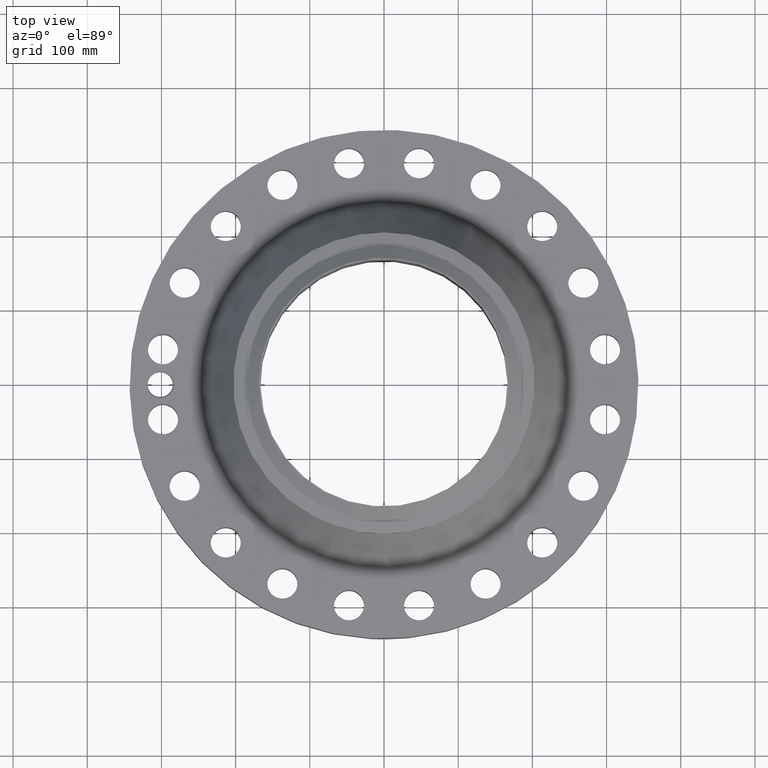
[diagram: clean part render]
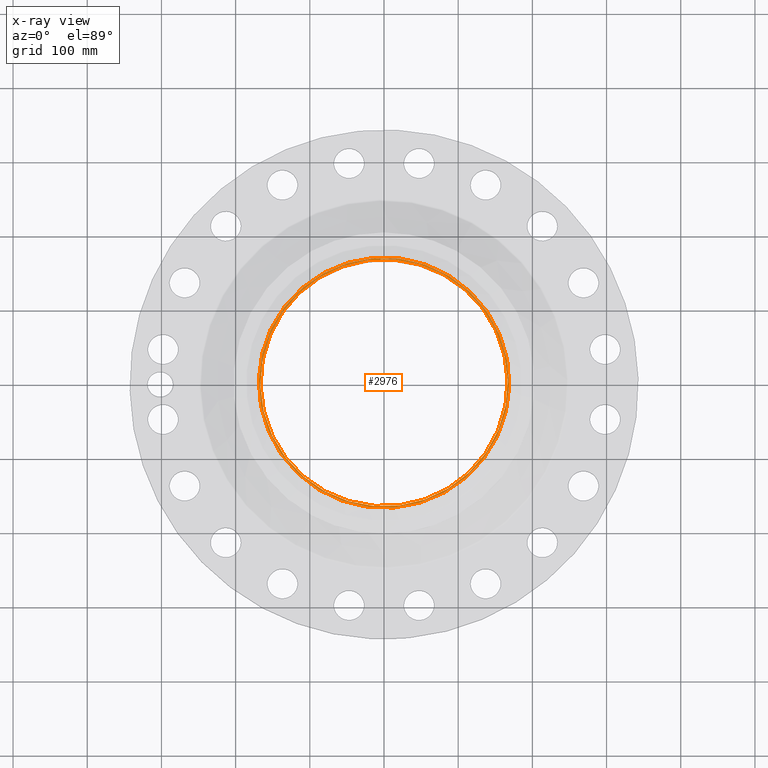
[diagram: x-ray — body ghosted, one internal face saturated and labeled with its STEP entity id]
A machine part, top view, then the same camera in x-ray: the body is ghosted and one INTERNAL B-rep face — a face not visible from any outside direction — is saturated and labeled: STEP entity #2976.
In plain terms, the highlighted planar face has unit normal (0, 0, -1).
Its self-contained STEP definition (entity closure, byte-faithful):
#1565=AXIS2_PLACEMENT_3D('Circle Axis2P3D',#1563,#1564,$) ;
#1633=AXIS2_PLACEMENT_3D('Circle Axis2P3D',#1631,#1632,$) ;
#2952=AXIS2_PLACEMENT_3D('Plane Axis2P3D',#2949,#2950,#2951) ;
#2956=AXIS2_PLACEMENT_3D('Circle Axis2P3D',#2954,#2955,$) ;
#2965=AXIS2_PLACEMENT_3D('Circle Axis2P3D',#2963,#2964,$) ;
#1563=CARTESIAN_POINT('Axis2P3D Location',(0.,0.,7.25000000003)) ;
#1567=CARTESIAN_POINT('Vertex',(3.14599038433,5.75869677115,7.25000000003)) ;
#1569=CARTESIAN_POINT('Vertex',(-3.14599038433,-5.75869677115,7.25000000003)) ;
#1631=CARTESIAN_POINT('Axis2P3D Location',(0.,0.,7.25000000003)) ;
#2949=CARTESIAN_POINT('Axis2P3D Location',(0.,8.00000000003,7.25000000003)) ;
#2954=CARTESIAN_POINT('Axis2P3D Location',(0.,0.,7.25000000003)) ;
#2958=CARTESIAN_POINT('Vertex',(3.18374042674,-5.82779776027,7.25000000003)) ;
#2960=CARTESIAN_POINT('Vertex',(-3.18374042674,5.82779776027,7.25000000003)) ;
#2963=CARTESIAN_POINT('Axis2P3D Location',(0.,0.,7.25000000003)) ;
#1564=DIRECTION('Axis2P3D Direction',(0.,0.,-0.0393700787402)) ;
#1632=DIRECTION('Axis2P3D Direction',(0.,0.,-0.0393700787402)) ;
#2950=DIRECTION('Axis2P3D Direction',(0.,0.,-0.0393700787402)) ;
#2951=DIRECTION('Axis2P3D XDirection',(0.0393700787402,0.,0.)) ;
#2955=DIRECTION('Axis2P3D Direction',(0.,0.,-0.0393700787402)) ;
#2964=DIRECTION('Axis2P3D Direction',(0.,0.,-0.0393700787402)) ;
#2969=ORIENTED_EDGE('',*,*,#2962,.T.) ;
#2970=ORIENTED_EDGE('',*,*,#2967,.T.) ;
#2973=ORIENTED_EDGE('',*,*,#1635,.T.) ;
#2974=ORIENTED_EDGE('',*,*,#1571,.T.) ;
#2975=FACE_BOUND('',#2972,.T.) ;
#2976=ADVANCED_FACE('PartBody',(#2971,#2975),#2953,.F.) ;
#1566=CIRCLE('generated circle',#1565,6.56200000003) ;
#1634=CIRCLE('generated circle',#1633,6.56200000003) ;
#2957=CIRCLE('generated circle',#2956,6.64074015751) ;
#2966=CIRCLE('generated circle',#2965,6.64074015751) ;
#1571=EDGE_CURVE('',#1568,#1570,#1566,.T.) ;
#1635=EDGE_CURVE('',#1570,#1568,#1634,.T.) ;
#2962=EDGE_CURVE('',#2959,#2961,#2957,.F.) ;
#2967=EDGE_CURVE('',#2961,#2959,#2966,.F.) ;
#2968=EDGE_LOOP('',(#2969,#2970)) ;
#2972=EDGE_LOOP('',(#2973,#2974)) ;
#2971=FACE_OUTER_BOUND('',#2968,.T.) ;
#2953=PLANE('',#2952) ;
#1568=VERTEX_POINT('',#1567) ;
#1570=VERTEX_POINT('',#1569) ;
#2959=VERTEX_POINT('',#2958) ;
#2961=VERTEX_POINT('',#2960) ;